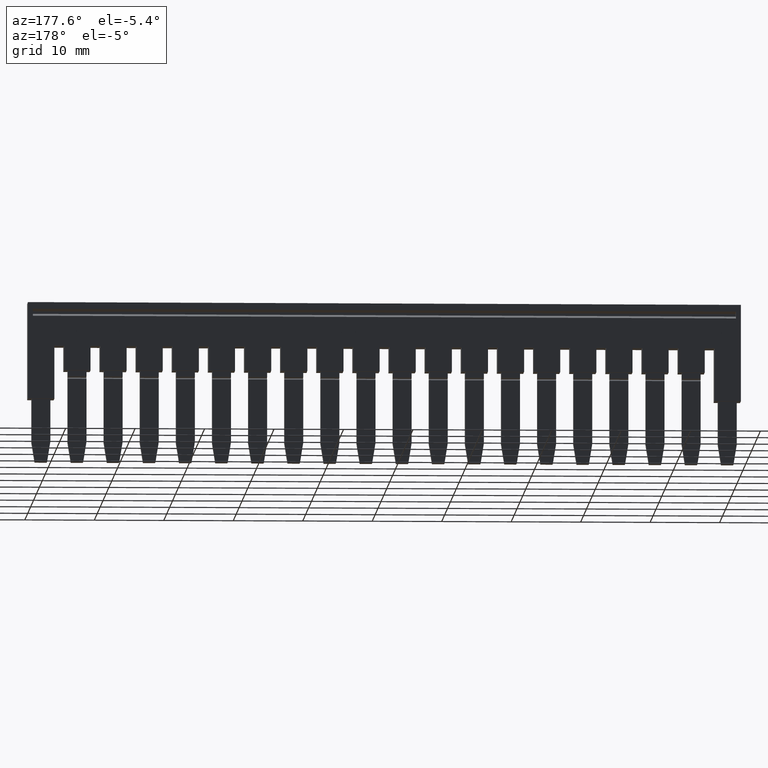
[diagram: clean part render]
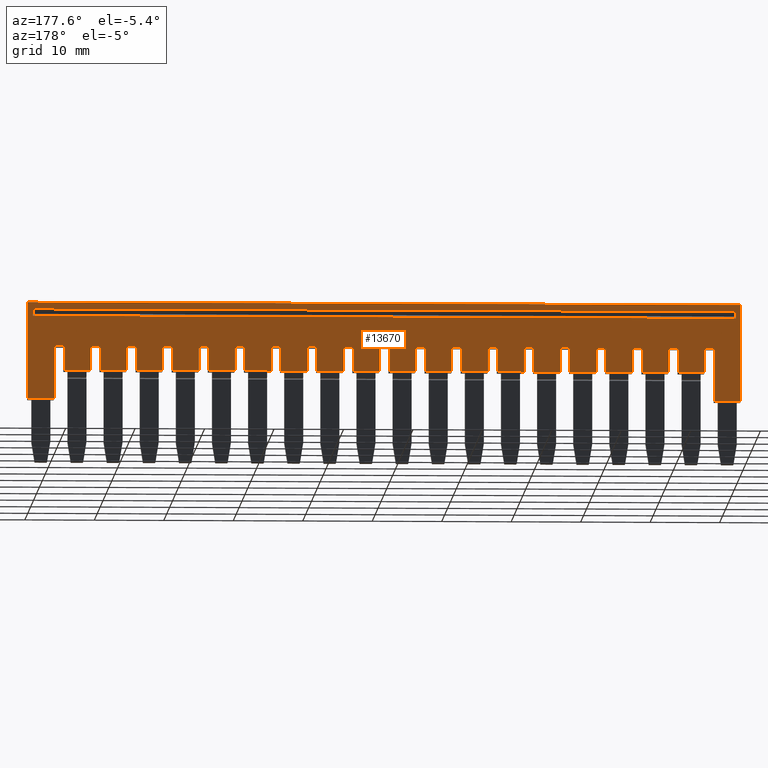
[diagram: same view with one face highlighted and labeled with its STEP entity id]
A machine part, auxiliary view. The second image highlights one B-rep face of the part: STEP entity #13670.
In plain terms, the highlighted planar face has unit normal (0, -1, 0).
Its self-contained STEP definition (entity closure, byte-faithful):
#6900=CARTESIAN_POINT('',(2.60716722168537,-10.116373989214,
54.825516382496));
#6910=DIRECTION('',(1.,0.,0.));
#6920=DIRECTION('',(0.,-1.,0.));
#6930=AXIS2_PLACEMENT_3D('',#6900,#6910,#6920);
#6940=PLANE('',#6930);
#6950=CARTESIAN_POINT('',(2.60716722168537,-9.84102540378367,41.874984))
;
#6960=DIRECTION('',(0.,0.,1.));
#6970=VECTOR('',#6960,1.);
#6980=LINE('',#6950,#6970);
#6990=CARTESIAN_POINT('',(2.60716722168537,-9.84102540378367,
18.8599999999988));
#7000=VERTEX_POINT('',#6990);
#7010=CARTESIAN_POINT('',(2.60716722168537,-9.84102540378367,
120.059999999999));
#7020=VERTEX_POINT('',#7010);
#7030=EDGE_CURVE('',#7000,#7020,#6980,.T.);
#7040=ORIENTED_EDGE('',*,*,#7030,.T.);
#7050=CARTESIAN_POINT('',(2.60716722168537,-12.305124,18.8599999999988))
;
#7060=DIRECTION('',(0.,1.,0.));
#7070=VECTOR('',#7060,1.);
#7080=LINE('',#7050,#7070);
#7090=CARTESIAN_POINT('',(2.60716722168537,-10.8389702342654,
18.8599999999988));
#7100=VERTEX_POINT('',#7090);
#7110=EDGE_CURVE('',#7100,#7000,#7080,.T.);
#7120=ORIENTED_EDGE('',*,*,#7110,.T.);
#7130=CARTESIAN_POINT('',(2.60716722168537,-10.8389702342654,41.874984))
;
#7140=DIRECTION('',(0.,0.,-1.));
#7150=VECTOR('',#7140,1.);
#7160=LINE('',#7130,#7150);
#7170=CARTESIAN_POINT('',(2.60716722168537,-10.8389702342654,
120.059999999999));
#7180=VERTEX_POINT('',#7170);
#7190=EDGE_CURVE('',#7180,#7100,#7160,.T.);
#7200=ORIENTED_EDGE('',*,*,#7190,.T.);
#7210=CARTESIAN_POINT('',(2.60716722168537,-12.305124,120.059999999999))
;
#7220=DIRECTION('',(0.,1.,0.));
#7230=VECTOR('',#7220,1.);
#7240=LINE('',#7210,#7230);
#7250=EDGE_CURVE('',#7180,#7020,#7240,.T.);
#7260=ORIENTED_EDGE('',*,*,#7250,.F.);
#7270=EDGE_LOOP('',(#7260,#7200,#7120,#7040));
#7280=FACE_BOUND('',#7270,.T.);
#7290=CARTESIAN_POINT('',(2.60716722168537,-12.305124,18.1599999999988))
;
#7300=DIRECTION('',(0.,1.,0.));
#7310=VECTOR('',#7300,1.);
#7320=LINE('',#7290,#7310);
#7330=CARTESIAN_POINT('',(2.60716722168537,-22.7750000000004,
18.1599999999988));
#7340=VERTEX_POINT('',#7330);
#7350=CARTESIAN_POINT('',(2.60716722168537,-8.8750000000004,
18.1599999999988));
#7360=VERTEX_POINT('',#7350);
#7370=EDGE_CURVE('',#7340,#7360,#7320,.T.);
#7380=ORIENTED_EDGE('',*,*,#7370,.F.);
#7390=CARTESIAN_POINT('',(2.60716722168537,-8.8750000000004,41.874984));
#7400=DIRECTION('',(0.,0.,-1.));
#7410=VECTOR('',#7400,1.);
#7420=LINE('',#7390,#7410);
#7430=CARTESIAN_POINT('',(2.60716722168537,-8.8750000000004,
120.759999999999));
#7440=VERTEX_POINT('',#7430);
#7450=EDGE_CURVE('',#7440,#7360,#7420,.T.);
#7460=ORIENTED_EDGE('',*,*,#7450,.T.);
#7470=CARTESIAN_POINT('',(2.60716722168537,-12.305124,120.759999999999))
;
#7480=DIRECTION('',(0.,1.,0.));
#7490=VECTOR('',#7480,1.);
#7500=LINE('',#7470,#7490);
#7510=CARTESIAN_POINT('',(2.60716722168537,-22.7750000000004,
120.759999999999));
#7520=VERTEX_POINT('',#7510);
#7530=EDGE_CURVE('',#7520,#7440,#7500,.T.);
#7540=ORIENTED_EDGE('',*,*,#7530,.T.);
#7550=CARTESIAN_POINT('',(2.60716722168537,-22.7750000000004,41.874984))
;
#7560=DIRECTION('',(0.,0.,-1.));
#7570=VECTOR('',#7560,1.);
#7580=LINE('',#7550,#7570);
#7590=CARTESIAN_POINT('',(2.60716722168537,-22.7750000000004,
116.959999999999));
#7600=VERTEX_POINT('',#7590);
#7610=EDGE_CURVE('',#7520,#7600,#7580,.T.);
#7620=ORIENTED_EDGE('',*,*,#7610,.F.);
#7630=CARTESIAN_POINT('',(2.60716722168537,-12.305124,116.959999999999))
;
#7640=DIRECTION('',(0.,-1.,0.));
#7650=VECTOR('',#7640,1.);
#7660=LINE('',#7630,#7650);
#7670=CARTESIAN_POINT('',(2.60716722168537,-15.1750000000004,
116.959999999999));
#7680=VERTEX_POINT('',#7670);
#7690=EDGE_CURVE('',#7680,#7600,#7660,.T.);
#7700=ORIENTED_EDGE('',*,*,#7690,.T.);
#7710=CARTESIAN_POINT('',(2.60716722168537,-15.1750000000004,41.874984))
;
#7720=DIRECTION('',(0.,0.,-1.));
#7730=VECTOR('',#7720,1.);
#7740=LINE('',#7710,#7730);
#7750=CARTESIAN_POINT('',(2.60716722168537,-15.1750000000004,
115.559999999999));
#7760=VERTEX_POINT('',#7750);
#7770=EDGE_CURVE('',#7680,#7760,#7740,.T.);
#7780=ORIENTED_EDGE('',*,*,#7770,.F.);
#7790=CARTESIAN_POINT('',(2.60716722168537,-12.305124,115.559999999999))
;
#7800=DIRECTION('',(0.,-1.,0.));
#7810=VECTOR('',#7800,1.);
#7820=LINE('',#7790,#7810);
#7830=CARTESIAN_POINT('',(2.60716722168537,-18.6750000000004,
115.559999999999));
#7840=VERTEX_POINT('',#7830);
#7850=EDGE_CURVE('',#7760,#7840,#7820,.T.);
#7860=ORIENTED_EDGE('',*,*,#7850,.F.);
#7870=CARTESIAN_POINT('',(2.60716722168537,-18.6750000000004,62.4));
#7880=DIRECTION('',(0.,0.,-1.));
#7890=VECTOR('',#7880,1.);
#7900=LINE('',#7870,#7890);
#7910=CARTESIAN_POINT('',(2.60716722168537,-18.6750000000004,
111.759999999999));
#7920=VERTEX_POINT('',#7910);
#7930=EDGE_CURVE('',#7840,#7920,#7900,.T.);
#7940=ORIENTED_EDGE('',*,*,#7930,.F.);
#7950=CARTESIAN_POINT('',(2.60716722168537,-12.305124,111.759999999999))
;
#7960=DIRECTION('',(0.,-1.,0.));
#7970=VECTOR('',#7960,1.);
#7980=LINE('',#7950,#7970);
#7990=CARTESIAN_POINT('',(2.60716722168537,-15.1750000000004,
111.759999999999));
#8000=VERTEX_POINT('',#7990);
#8010=EDGE_CURVE('',#8000,#7920,#7980,.T.);
#8020=ORIENTED_EDGE('',*,*,#8010,.T.);
#8030=CARTESIAN_POINT('',(2.60716722168537,-15.1750000000004,41.874984))
;
#8040=DIRECTION('',(0.,0.,-1.));
#8050=VECTOR('',#8040,1.);
#8060=LINE('',#8030,#8050);
#8070=CARTESIAN_POINT('',(2.60716722168537,-15.1750000000004,
110.359999999999));
#8080=VERTEX_POINT('',#8070);
#8090=EDGE_CURVE('',#8000,#8080,#8060,.T.);
#8100=ORIENTED_EDGE('',*,*,#8090,.F.);
#8110=CARTESIAN_POINT('',(2.60716722168537,-12.305124,110.359999999999))
;
#8120=DIRECTION('',(0.,-1.,0.));
#8130=VECTOR('',#8120,1.);
#8140=LINE('',#8110,#8130);
#8150=CARTESIAN_POINT('',(2.60716722168537,-18.6750000000004,
110.359999999999));
#8160=VERTEX_POINT('',#8150);
#8170=EDGE_CURVE('',#8080,#8160,#8140,.T.);
#8180=ORIENTED_EDGE('',*,*,#8170,.F.);
#8190=CARTESIAN_POINT('',(2.60716722168537,-18.6750000000004,57.2));
#8200=DIRECTION('',(0.,0.,-1.));
#8210=VECTOR('',#8200,1.);
#8220=LINE('',#8190,#8210);
#8230=CARTESIAN_POINT('',(2.60716722168537,-18.6750000000004,
106.559999999999));
#8240=VERTEX_POINT('',#8230);
#8250=EDGE_CURVE('',#8160,#8240,#8220,.T.);
#8260=ORIENTED_EDGE('',*,*,#8250,.F.);
#8270=CARTESIAN_POINT('',(2.60716722168537,-12.305124,106.559999999999))
;
#8280=DIRECTION('',(0.,-1.,0.));
#8290=VECTOR('',#8280,1.);
#8300=LINE('',#8270,#8290);
#8310=CARTESIAN_POINT('',(2.60716722168537,-15.1750000000004,
106.559999999999));
#8320=VERTEX_POINT('',#8310);
#8330=EDGE_CURVE('',#8320,#8240,#8300,.T.);
#8340=ORIENTED_EDGE('',*,*,#8330,.T.);
#8350=CARTESIAN_POINT('',(2.60716722168537,-15.1750000000004,41.874984))
;
#8360=DIRECTION('',(0.,0.,-1.));
#8370=VECTOR('',#8360,1.);
#8380=LINE('',#8350,#8370);
#8390=CARTESIAN_POINT('',(2.60716722168537,-15.1750000000004,
105.159999999999));
#8400=VERTEX_POINT('',#8390);
#8410=EDGE_CURVE('',#8320,#8400,#8380,.T.);
#8420=ORIENTED_EDGE('',*,*,#8410,.F.);
#8430=CARTESIAN_POINT('',(2.60716722168537,-12.305124,105.159999999999))
;
#8440=DIRECTION('',(0.,-1.,0.));
#8450=VECTOR('',#8440,1.);
#8460=LINE('',#8430,#8450);
#8470=CARTESIAN_POINT('',(2.60716722168537,-18.6750000000004,
105.159999999999));
#8480=VERTEX_POINT('',#8470);
#8490=EDGE_CURVE('',#8400,#8480,#8460,.T.);
#8500=ORIENTED_EDGE('',*,*,#8490,.F.);
#8510=CARTESIAN_POINT('',(2.60716722168537,-18.6750000000004,
52.0000000000001));
#8520=DIRECTION('',(0.,0.,-1.));
#8530=VECTOR('',#8520,1.);
#8540=LINE('',#8510,#8530);
#8550=CARTESIAN_POINT('',(2.60716722168537,-18.6750000000004,
101.359999999999));
#8560=VERTEX_POINT('',#8550);
#8570=EDGE_CURVE('',#8480,#8560,#8540,.T.);
#8580=ORIENTED_EDGE('',*,*,#8570,.F.);
#8590=CARTESIAN_POINT('',(2.60716722168537,-12.305124,101.359999999999))
;
#8600=DIRECTION('',(0.,-1.,0.));
#8610=VECTOR('',#8600,1.);
#8620=LINE('',#8590,#8610);
#8630=CARTESIAN_POINT('',(2.60716722168537,-15.1750000000004,
101.359999999999));
#8640=VERTEX_POINT('',#8630);
#8650=EDGE_CURVE('',#8640,#8560,#8620,.T.);
#8660=ORIENTED_EDGE('',*,*,#8650,.T.);
#8670=CARTESIAN_POINT('',(2.60716722168537,-15.1750000000004,41.874984))
;
#8680=DIRECTION('',(0.,0.,-1.));
#8690=VECTOR('',#8680,1.);
#8700=LINE('',#8670,#8690);
#8710=CARTESIAN_POINT('',(2.60716722168537,-15.1750000000004,
99.9599999999988));
#8720=VERTEX_POINT('',#8710);
#8730=EDGE_CURVE('',#8640,#8720,#8700,.T.);
#8740=ORIENTED_EDGE('',*,*,#8730,.F.);
#8750=CARTESIAN_POINT('',(2.60716722168537,-12.305124,99.9599999999988))
;
#8760=DIRECTION('',(0.,-1.,0.));
#8770=VECTOR('',#8760,1.);
#8780=LINE('',#8750,#8770);
#8790=CARTESIAN_POINT('',(2.60716722168537,-18.6750000000004,
99.9599999999988));
#8800=VERTEX_POINT('',#8790);
#8810=EDGE_CURVE('',#8720,#8800,#8780,.T.);
#8820=ORIENTED_EDGE('',*,*,#8810,.F.);
#8830=CARTESIAN_POINT('',(2.60716722168537,-18.6750000000004,
149.319999999998));
#8840=DIRECTION('',(0.,0.,1.));
#8850=VECTOR('',#8840,1.);
#8860=LINE('',#8830,#8850);
#8870=CARTESIAN_POINT('',(2.60716722168537,-18.6750000000004,
96.1599999999988));
#8880=VERTEX_POINT('',#8870);
#8890=EDGE_CURVE('',#8880,#8800,#8860,.T.);
#8900=ORIENTED_EDGE('',*,*,#8890,.T.);
#8910=CARTESIAN_POINT('',(2.60716722168537,-12.305124,96.1599999999988))
;
#8920=DIRECTION('',(0.,-1.,0.));
#8930=VECTOR('',#8920,1.);
#8940=LINE('',#8910,#8930);
#8950=CARTESIAN_POINT('',(2.60716722168537,-15.1750000000004,
96.1599999999988));
#8960=VERTEX_POINT('',#8950);
#8970=EDGE_CURVE('',#8960,#8880,#8940,.T.);
#8980=ORIENTED_EDGE('',*,*,#8970,.T.);
#8990=CARTESIAN_POINT('',(2.60716722168537,-15.1750000000004,41.874984))
;
#9000=DIRECTION('',(0.,0.,-1.));
#9010=VECTOR('',#9000,1.);
#9020=LINE('',#8990,#9010);
#9030=CARTESIAN_POINT('',(2.60716722168537,-15.1750000000004,
94.7599999999988));
#9040=VERTEX_POINT('',#9030);
#9050=EDGE_CURVE('',#8960,#9040,#9020,.T.);
#9060=ORIENTED_EDGE('',*,*,#9050,.F.);
#9070=CARTESIAN_POINT('',(2.60716722168537,-12.305124,94.7599999999988))
;
#9080=DIRECTION('',(0.,-1.,0.));
#9090=VECTOR('',#9080,1.);
#9100=LINE('',#9070,#9090);
#9110=CARTESIAN_POINT('',(2.60716722168537,-18.6750000000004,
94.7599999999988));
#9120=VERTEX_POINT('',#9110);
#9130=EDGE_CURVE('',#9040,#9120,#9100,.T.);
#9140=ORIENTED_EDGE('',*,*,#9130,.F.);
#9150=CARTESIAN_POINT('',(2.60716722168537,-18.6750000000004,
144.119999999998));
#9160=DIRECTION('',(0.,0.,1.));
#9170=VECTOR('',#9160,1.);
#9180=LINE('',#9150,#9170);
#9190=CARTESIAN_POINT('',(2.60716722168537,-18.6750000000004,
90.9599999999988));
#9200=VERTEX_POINT('',#9190);
#9210=EDGE_CURVE('',#9200,#9120,#9180,.T.);
#9220=ORIENTED_EDGE('',*,*,#9210,.T.);
#9230=CARTESIAN_POINT('',(2.60716722168537,-12.305124,90.9599999999988))
;
#9240=DIRECTION('',(0.,-1.,0.));
#9250=VECTOR('',#9240,1.);
#9260=LINE('',#9230,#9250);
#9270=CARTESIAN_POINT('',(2.60716722168537,-15.1750000000004,
90.9599999999988));
#9280=VERTEX_POINT('',#9270);
#9290=EDGE_CURVE('',#9280,#9200,#9260,.T.);
#9300=ORIENTED_EDGE('',*,*,#9290,.T.);
#9310=CARTESIAN_POINT('',(2.60716722168537,-15.1750000000004,41.874984))
;
#9320=DIRECTION('',(0.,0.,-1.));
#9330=VECTOR('',#9320,1.);
#9340=LINE('',#9310,#9330);
#9350=CARTESIAN_POINT('',(2.60716722168537,-15.1750000000004,
89.5599999999988));
#9360=VERTEX_POINT('',#9350);
#9370=EDGE_CURVE('',#9280,#9360,#9340,.T.);
#9380=ORIENTED_EDGE('',*,*,#9370,.F.);
#9390=CARTESIAN_POINT('',(2.60716722168537,-12.305124,89.5599999999988))
;
#9400=DIRECTION('',(0.,-1.,0.));
#9410=VECTOR('',#9400,1.);
#9420=LINE('',#9390,#9410);
#9430=CARTESIAN_POINT('',(2.60716722168537,-18.6750000000004,
89.5599999999988));
#9440=VERTEX_POINT('',#9430);
#9450=EDGE_CURVE('',#9360,#9440,#9420,.T.);
#9460=ORIENTED_EDGE('',*,*,#9450,.F.);
#9470=CARTESIAN_POINT('',(2.60716722168536,-18.6750000000004,
138.919999999998));
#9480=DIRECTION('',(0.,0.,1.));
#9490=VECTOR('',#9480,1.);
#9500=LINE('',#9470,#9490);
#9510=CARTESIAN_POINT('',(2.60716722168537,-18.6750000000004,
85.7599999999988));
#9520=VERTEX_POINT('',#9510);
#9530=EDGE_CURVE('',#9520,#9440,#9500,.T.);
#9540=ORIENTED_EDGE('',*,*,#9530,.T.);
#9550=CARTESIAN_POINT('',(2.60716722168537,-12.305124,85.7599999999988))
;
#9560=DIRECTION('',(0.,-1.,0.));
#9570=VECTOR('',#9560,1.);
#9580=LINE('',#9550,#9570);
#9590=CARTESIAN_POINT('',(2.60716722168537,-15.1750000000004,
85.7599999999988));
#9600=VERTEX_POINT('',#9590);
#9610=EDGE_CURVE('',#9600,#9520,#9580,.T.);
#9620=ORIENTED_EDGE('',*,*,#9610,.T.);
#9630=CARTESIAN_POINT('',(2.60716722168537,-15.1750000000004,41.874984))
;
#9640=DIRECTION('',(0.,0.,-1.));
#9650=VECTOR('',#9640,1.);
#9660=LINE('',#9630,#9650);
#9670=CARTESIAN_POINT('',(2.60716722168537,-15.1750000000004,
84.3599999999988));
#9680=VERTEX_POINT('',#9670);
#9690=EDGE_CURVE('',#9600,#9680,#9660,.T.);
#9700=ORIENTED_EDGE('',*,*,#9690,.F.);
#9710=CARTESIAN_POINT('',(2.60716722168537,-12.305124,84.3599999999988))
;
#9720=DIRECTION('',(0.,-1.,0.));
#9730=VECTOR('',#9720,1.);
#9740=LINE('',#9710,#9730);
#9750=CARTESIAN_POINT('',(2.60716722168537,-18.6750000000004,
84.3599999999988));
#9760=VERTEX_POINT('',#9750);
#9770=EDGE_CURVE('',#9680,#9760,#9740,.T.);
#9780=ORIENTED_EDGE('',*,*,#9770,.F.);
#9790=CARTESIAN_POINT('',(2.60716722168536,-18.6750000000004,
133.719999999998));
#9800=DIRECTION('',(0.,0.,1.));
#9810=VECTOR('',#9800,1.);
#9820=LINE('',#9790,#9810);
#9830=CARTESIAN_POINT('',(2.60716722168537,-18.6750000000004,
80.5599999999988));
#9840=VERTEX_POINT('',#9830);
#9850=EDGE_CURVE('',#9840,#9760,#9820,.T.);
#9860=ORIENTED_EDGE('',*,*,#9850,.T.);
#9870=CARTESIAN_POINT('',(2.60716722168537,-12.305124,80.5599999999988))
;
#9880=DIRECTION('',(0.,-1.,0.));
#9890=VECTOR('',#9880,1.);
#9900=LINE('',#9870,#9890);
#9910=CARTESIAN_POINT('',(2.60716722168537,-15.1750000000004,
80.5599999999988));
#9920=VERTEX_POINT('',#9910);
#9930=EDGE_CURVE('',#9920,#9840,#9900,.T.);
#9940=ORIENTED_EDGE('',*,*,#9930,.T.);
#9950=CARTESIAN_POINT('',(2.60716722168537,-15.1750000000004,41.874984))
;
#9960=DIRECTION('',(0.,0.,-1.));
#9970=VECTOR('',#9960,1.);
#9980=LINE('',#9950,#9970);
#9990=CARTESIAN_POINT('',(2.60716722168537,-15.1750000000004,
79.1599999999988));
#10000=VERTEX_POINT('',#9990);
#10010=EDGE_CURVE('',#9920,#10000,#9980,.T.);
#10020=ORIENTED_EDGE('',*,*,#10010,.F.);
#10030=CARTESIAN_POINT('',(2.60716722168537,-12.305124,79.1599999999988)
);
#10040=DIRECTION('',(0.,-1.,0.));
#10050=VECTOR('',#10040,1.);
#10060=LINE('',#10030,#10050);
#10070=CARTESIAN_POINT('',(2.60716722168537,-18.6750000000004,
79.1599999999988));
#10080=VERTEX_POINT('',#10070);
#10090=EDGE_CURVE('',#10000,#10080,#10060,.T.);
#10100=ORIENTED_EDGE('',*,*,#10090,.F.);
#10110=CARTESIAN_POINT('',(2.60716722168537,-18.6750000000004,26.));
#10120=DIRECTION('',(0.,0.,-1.));
#10130=VECTOR('',#10120,1.);
#10140=LINE('',#10110,#10130);
#10150=CARTESIAN_POINT('',(2.60716722168537,-18.6750000000004,
75.3599999999988));
#10160=VERTEX_POINT('',#10150);
#10170=EDGE_CURVE('',#10080,#10160,#10140,.T.);
#10180=ORIENTED_EDGE('',*,*,#10170,.F.);
#10190=CARTESIAN_POINT('',(2.60716722168537,-12.305124,75.3599999999988)
);
#10200=DIRECTION('',(0.,-1.,0.));
#10210=VECTOR('',#10200,1.);
#10220=LINE('',#10190,#10210);
#10230=CARTESIAN_POINT('',(2.60716722168537,-15.1750000000004,
75.3599999999988));
#10240=VERTEX_POINT('',#10230);
#10250=EDGE_CURVE('',#10240,#10160,#10220,.T.);
#10260=ORIENTED_EDGE('',*,*,#10250,.T.);
#10270=CARTESIAN_POINT('',(2.60716722168537,-15.1750000000004,41.874984)
);
#10280=DIRECTION('',(0.,0.,-1.));
#10290=VECTOR('',#10280,1.);
#10300=LINE('',#10270,#10290);
#10310=CARTESIAN_POINT('',(2.60716722168537,-15.1750000000004,
73.9599999999988));
#10320=VERTEX_POINT('',#10310);
#10330=EDGE_CURVE('',#10240,#10320,#10300,.T.);
#10340=ORIENTED_EDGE('',*,*,#10330,.F.);
#10350=CARTESIAN_POINT('',(2.60716722168537,-12.305124,73.9599999999988)
);
#10360=DIRECTION('',(0.,-1.,0.));
#10370=VECTOR('',#10360,1.);
#10380=LINE('',#10350,#10370);
#10390=CARTESIAN_POINT('',(2.60716722168537,-18.6750000000004,
73.9599999999988));
#10400=VERTEX_POINT('',#10390);
#10410=EDGE_CURVE('',#10320,#10400,#10380,.T.);
#10420=ORIENTED_EDGE('',*,*,#10410,.F.);
#10430=CARTESIAN_POINT('',(2.60716722168537,-18.6750000000004,20.8));
#10440=DIRECTION('',(0.,0.,-1.));
#10450=VECTOR('',#10440,1.);
#10460=LINE('',#10430,#10450);
#10470=CARTESIAN_POINT('',(2.60716722168537,-18.6750000000004,
70.1599999999988));
#10480=VERTEX_POINT('',#10470);
#10490=EDGE_CURVE('',#10400,#10480,#10460,.T.);
#10500=ORIENTED_EDGE('',*,*,#10490,.F.);
#10510=CARTESIAN_POINT('',(2.60716722168537,-12.305124,70.1599999999988)
);
#10520=DIRECTION('',(0.,-1.,0.));
#10530=VECTOR('',#10520,1.);
#10540=LINE('',#10510,#10530);
#10550=CARTESIAN_POINT('',(2.60716722168537,-15.1750000000004,
70.1599999999988));
#10560=VERTEX_POINT('',#10550);
#10570=EDGE_CURVE('',#10560,#10480,#10540,.T.);
#10580=ORIENTED_EDGE('',*,*,#10570,.T.);
#10590=CARTESIAN_POINT('',(2.60716722168537,-15.1750000000004,41.874984)
);
#10600=DIRECTION('',(0.,0.,-1.));
#10610=VECTOR('',#10600,1.);
#10620=LINE('',#10590,#10610);
#10630=CARTESIAN_POINT('',(2.60716722168537,-15.1750000000004,
68.7599999999988));
#10640=VERTEX_POINT('',#10630);
#10650=EDGE_CURVE('',#10560,#10640,#10620,.T.);
#10660=ORIENTED_EDGE('',*,*,#10650,.F.);
#10670=CARTESIAN_POINT('',(2.60716722168537,-12.305124,68.7599999999988)
);
#10680=DIRECTION('',(0.,-1.,0.));
#10690=VECTOR('',#10680,1.);
#10700=LINE('',#10670,#10690);
#10710=CARTESIAN_POINT('',(2.60716722168537,-18.6750000000004,
68.7599999999988));
#10720=VERTEX_POINT('',#10710);
#10730=EDGE_CURVE('',#10640,#10720,#10700,.T.);
#10740=ORIENTED_EDGE('',*,*,#10730,.F.);
#10750=CARTESIAN_POINT('',(2.60716722168537,-18.6750000000004,
118.119999999998));
#10760=DIRECTION('',(0.,0.,1.));
#10770=VECTOR('',#10760,1.);
#10780=LINE('',#10750,#10770);
#10790=CARTESIAN_POINT('',(2.60716722168537,-18.6750000000004,
64.9599999999988));
#10800=VERTEX_POINT('',#10790);
#10810=EDGE_CURVE('',#10800,#10720,#10780,.T.);
#10820=ORIENTED_EDGE('',*,*,#10810,.T.);
#10830=CARTESIAN_POINT('',(2.60716722168537,-12.305124,64.9599999999988)
);
#10840=DIRECTION('',(0.,-1.,0.));
#10850=VECTOR('',#10840,1.);
#10860=LINE('',#10830,#10850);
#10870=CARTESIAN_POINT('',(2.60716722168537,-15.1750000000004,
64.9599999999988));
#10880=VERTEX_POINT('',#10870);
#10890=EDGE_CURVE('',#10880,#10800,#10860,.T.);
#10900=ORIENTED_EDGE('',*,*,#10890,.T.);
#10910=CARTESIAN_POINT('',(2.60716722168537,-15.1750000000004,41.874984)
);
#10920=DIRECTION('',(0.,0.,-1.));
#10930=VECTOR('',#10920,1.);
#10940=LINE('',#10910,#10930);
#10950=CARTESIAN_POINT('',(2.60716722168537,-15.1750000000004,
63.5599999999988));
#10960=VERTEX_POINT('',#10950);
#10970=EDGE_CURVE('',#10880,#10960,#10940,.T.);
#10980=ORIENTED_EDGE('',*,*,#10970,.F.);
#10990=CARTESIAN_POINT('',(2.60716722168537,-12.305124,63.5599999999988)
);
#11000=DIRECTION('',(0.,-1.,0.));
#11010=VECTOR('',#11000,1.);
#11020=LINE('',#10990,#11010);
#11030=CARTESIAN_POINT('',(2.60716722168537,-18.6750000000004,
63.5599999999988));
#11040=VERTEX_POINT('',#11030);
#11050=EDGE_CURVE('',#10960,#11040,#11020,.T.);
#11060=ORIENTED_EDGE('',*,*,#11050,.F.);
#11070=CARTESIAN_POINT('',(2.60716722168537,-18.6750000000004,10.4));
#11080=DIRECTION('',(0.,0.,-1.));
#11090=VECTOR('',#11080,1.);
#11100=LINE('',#11070,#11090);
#11110=CARTESIAN_POINT('',(2.60716722168537,-18.6750000000004,
59.7599999999988));
#11120=VERTEX_POINT('',#11110);
#11130=EDGE_CURVE('',#11040,#11120,#11100,.T.);
#11140=ORIENTED_EDGE('',*,*,#11130,.F.);
#11150=CARTESIAN_POINT('',(2.60716722168537,-12.305124,59.7599999999988)
);
#11160=DIRECTION('',(0.,-1.,0.));
#11170=VECTOR('',#11160,1.);
#11180=LINE('',#11150,#11170);
#11190=CARTESIAN_POINT('',(2.60716722168537,-15.1750000000004,
59.7599999999988));
#11200=VERTEX_POINT('',#11190);
#11210=EDGE_CURVE('',#11200,#11120,#11180,.T.);
#11220=ORIENTED_EDGE('',*,*,#11210,.T.);
#11230=CARTESIAN_POINT('',(2.60716722168537,-15.1750000000004,41.874984)
);
#11240=DIRECTION('',(0.,0.,-1.));
#11250=VECTOR('',#11240,1.);
#11260=LINE('',#11230,#11250);
#11270=CARTESIAN_POINT('',(2.60716722168537,-15.1750000000004,
58.3599999999988));
#11280=VERTEX_POINT('',#11270);
#11290=EDGE_CURVE('',#11200,#11280,#11260,.T.);
#11300=ORIENTED_EDGE('',*,*,#11290,.F.);
#11310=CARTESIAN_POINT('',(2.60716722168537,-12.305124,58.3599999999988)
);
#11320=DIRECTION('',(0.,-1.,0.));
#11330=VECTOR('',#11320,1.);
#11340=LINE('',#11310,#11330);
#11350=CARTESIAN_POINT('',(2.60716722168537,-18.6750000000004,
58.3599999999988));
#11360=VERTEX_POINT('',#11350);
#11370=EDGE_CURVE('',#11280,#11360,#11340,.T.);
#11380=ORIENTED_EDGE('',*,*,#11370,.F.);
#11390=CARTESIAN_POINT('',(2.60716722168537,-18.6750000000004,
107.719999999998));
#11400=DIRECTION('',(0.,0.,1.));
#11410=VECTOR('',#11400,1.);
#11420=LINE('',#11390,#11410);
#11430=CARTESIAN_POINT('',(2.60716722168537,-18.6750000000004,
54.5599999999988));
#11440=VERTEX_POINT('',#11430);
#11450=EDGE_CURVE('',#11440,#11360,#11420,.T.);
#11460=ORIENTED_EDGE('',*,*,#11450,.T.);
#11470=CARTESIAN_POINT('',(2.60716722168537,-12.305124,54.5599999999988)
);
#11480=DIRECTION('',(0.,-1.,0.));
#11490=VECTOR('',#11480,1.);
#11500=LINE('',#11470,#11490);
#11510=CARTESIAN_POINT('',(2.60716722168537,-15.1750000000004,
54.5599999999988));
#11520=VERTEX_POINT('',#11510);
#11530=EDGE_CURVE('',#11520,#11440,#11500,.T.);
#11540=ORIENTED_EDGE('',*,*,#11530,.T.);
#11550=CARTESIAN_POINT('',(2.60716722168537,-15.1750000000004,41.874984)
);
#11560=DIRECTION('',(0.,0.,-1.));
#11570=VECTOR('',#11560,1.);
#11580=LINE('',#11550,#11570);
#11590=CARTESIAN_POINT('',(2.60716722168537,-15.1750000000004,
53.1599999999988));
#11600=VERTEX_POINT('',#11590);
#11610=EDGE_CURVE('',#11520,#11600,#11580,.T.);
#11620=ORIENTED_EDGE('',*,*,#11610,.F.);
#11630=CARTESIAN_POINT('',(2.60716722168537,-12.305124,53.1599999999988)
);
#11640=DIRECTION('',(0.,-1.,0.));
#11650=VECTOR('',#11640,1.);
#11660=LINE('',#11630,#11650);
#11670=CARTESIAN_POINT('',(2.60716722168537,-18.6750000000004,
53.1599999999988));
#11680=VERTEX_POINT('',#11670);
#11690=EDGE_CURVE('',#11600,#11680,#11660,.T.);
#11700=ORIENTED_EDGE('',*,*,#11690,.F.);
#11710=CARTESIAN_POINT('',(2.60716722168537,-18.6750000000004,
102.519999999998));
#11720=DIRECTION('',(0.,0.,1.));
#11730=VECTOR('',#11720,1.);
#11740=LINE('',#11710,#11730);
#11750=CARTESIAN_POINT('',(2.60716722168537,-18.6750000000004,
49.3599999999988));
#11760=VERTEX_POINT('',#11750);
#11770=EDGE_CURVE('',#11760,#11680,#11740,.T.);
#11780=ORIENTED_EDGE('',*,*,#11770,.T.);
#11790=CARTESIAN_POINT('',(2.60716722168537,-12.305124,49.3599999999988)
);
#11800=DIRECTION('',(0.,-1.,0.));
#11810=VECTOR('',#11800,1.);
#11820=LINE('',#11790,#11810);
#11830=CARTESIAN_POINT('',(2.60716722168537,-15.1750000000004,
49.3599999999988));
#11840=VERTEX_POINT('',#11830);
#11850=EDGE_CURVE('',#11840,#11760,#11820,.T.);
#11860=ORIENTED_EDGE('',*,*,#11850,.T.);
#11870=CARTESIAN_POINT('',(2.60716722168537,-15.1750000000004,41.874984)
);
#11880=DIRECTION('',(0.,0.,-1.));
#11890=VECTOR('',#11880,1.);
#11900=LINE('',#11870,#11890);
#11910=CARTESIAN_POINT('',(2.60716722168537,-15.1750000000004,
47.9599999999988));
#11920=VERTEX_POINT('',#11910);
#11930=EDGE_CURVE('',#11840,#11920,#11900,.T.);
#11940=ORIENTED_EDGE('',*,*,#11930,.F.);
#11950=CARTESIAN_POINT('',(2.60716722168537,-12.305124,47.9599999999988)
);
#11960=DIRECTION('',(0.,-1.,0.));
#11970=VECTOR('',#11960,1.);
#11980=LINE('',#11950,#11970);
#11990=CARTESIAN_POINT('',(2.60716722168537,-18.6750000000004,
47.9599999999988));
#12000=VERTEX_POINT('',#11990);
#12010=EDGE_CURVE('',#11920,#12000,#11980,.T.);
#12020=ORIENTED_EDGE('',*,*,#12010,.F.);
#12030=CARTESIAN_POINT('',(2.60716722168536,-18.6750000000004,
97.3199999999975));
#12040=DIRECTION('',(0.,0.,1.));
#12050=VECTOR('',#12040,1.);
#12060=LINE('',#12030,#12050);
#12070=CARTESIAN_POINT('',(2.60716722168537,-18.6750000000004,
44.1599999999988));
#12080=VERTEX_POINT('',#12070);
#12090=EDGE_CURVE('',#12080,#12000,#12060,.T.);
#12100=ORIENTED_EDGE('',*,*,#12090,.T.);
#12110=CARTESIAN_POINT('',(2.60716722168537,-12.305124,44.1599999999988)
);
#12120=DIRECTION('',(0.,-1.,0.));
#12130=VECTOR('',#12120,1.);
#12140=LINE('',#12110,#12130);
#12150=CARTESIAN_POINT('',(2.60716722168537,-15.1750000000004,
44.1599999999988));
#12160=VERTEX_POINT('',#12150);
#12170=EDGE_CURVE('',#12160,#12080,#12140,.T.);
#12180=ORIENTED_EDGE('',*,*,#12170,.T.);
#12190=CARTESIAN_POINT('',(2.60716722168537,-15.1750000000004,41.874984)
);
#12200=DIRECTION('',(0.,0.,-1.));
#12210=VECTOR('',#12200,1.);
#12220=LINE('',#12190,#12210);
#12230=CARTESIAN_POINT('',(2.60716722168537,-15.1750000000004,
42.7599999999988));
#12240=VERTEX_POINT('',#12230);
#12250=EDGE_CURVE('',#12160,#12240,#12220,.T.);
#12260=ORIENTED_EDGE('',*,*,#12250,.F.);
#12270=CARTESIAN_POINT('',(2.60716722168537,-12.305124,42.7599999999988)
);
#12280=DIRECTION('',(0.,-1.,0.));
#12290=VECTOR('',#12280,1.);
#12300=LINE('',#12270,#12290);
#12310=CARTESIAN_POINT('',(2.60716722168537,-18.6750000000004,
42.7599999999988));
#12320=VERTEX_POINT('',#12310);
#12330=EDGE_CURVE('',#12240,#12320,#12300,.T.);
#12340=ORIENTED_EDGE('',*,*,#12330,.F.);
#12350=CARTESIAN_POINT('',(2.60716722168536,-18.6750000000004,
92.1199999999975));
#12360=DIRECTION('',(0.,0.,1.));
#12370=VECTOR('',#12360,1.);
#12380=LINE('',#12350,#12370);
#12390=CARTESIAN_POINT('',(2.60716722168537,-18.6750000000004,
38.9599999999988));
#12400=VERTEX_POINT('',#12390);
#12410=EDGE_CURVE('',#12400,#12320,#12380,.T.);
#12420=ORIENTED_EDGE('',*,*,#12410,.T.);
#12430=CARTESIAN_POINT('',(2.60716722168537,-12.305124,38.9599999999988)
);
#12440=DIRECTION('',(0.,-1.,0.));
#12450=VECTOR('',#12440,1.);
#12460=LINE('',#12430,#12450);
#12470=CARTESIAN_POINT('',(2.60716722168537,-15.1750000000004,
38.9599999999988));
#12480=VERTEX_POINT('',#12470);
#12490=EDGE_CURVE('',#12480,#12400,#12460,.T.);
#12500=ORIENTED_EDGE('',*,*,#12490,.T.);
#12510=CARTESIAN_POINT('',(2.60716722168537,-15.1750000000004,41.874984)
);
#12520=DIRECTION('',(0.,0.,-1.));
#12530=VECTOR('',#12520,1.);
#12540=LINE('',#12510,#12530);
#12550=CARTESIAN_POINT('',(2.60716722168537,-15.1750000000004,
37.5599999999988));
#12560=VERTEX_POINT('',#12550);
#12570=EDGE_CURVE('',#12480,#12560,#12540,.T.);
#12580=ORIENTED_EDGE('',*,*,#12570,.F.);
#12590=CARTESIAN_POINT('',(2.60716722168537,-12.305124,37.5599999999988)
);
#12600=DIRECTION('',(0.,-1.,0.));
#12610=VECTOR('',#12600,1.);
#12620=LINE('',#12590,#12610);
#12630=CARTESIAN_POINT('',(2.60716722168537,-18.6750000000004,
37.5599999999988));
#12640=VERTEX_POINT('',#12630);
#12650=EDGE_CURVE('',#12560,#12640,#12620,.T.);
#12660=ORIENTED_EDGE('',*,*,#12650,.F.);
#12670=CARTESIAN_POINT('',(2.60716722168537,-18.6750000000004,-15.6));
#12680=DIRECTION('',(0.,0.,-1.));
#12690=VECTOR('',#12680,1.);
#12700=LINE('',#12670,#12690);
#12710=CARTESIAN_POINT('',(2.60716722168537,-18.6750000000004,
33.7599999999988));
#12720=VERTEX_POINT('',#12710);
#12730=EDGE_CURVE('',#12640,#12720,#12700,.T.);
#12740=ORIENTED_EDGE('',*,*,#12730,.F.);
#12750=CARTESIAN_POINT('',(2.60716722168537,-12.305124,33.7599999999988)
);
#12760=DIRECTION('',(0.,-1.,0.));
#12770=VECTOR('',#12760,1.);
#12780=LINE('',#12750,#12770);
#12790=CARTESIAN_POINT('',(2.60716722168537,-15.1750000000004,
33.7599999999988));
#12800=VERTEX_POINT('',#12790);
#12810=EDGE_CURVE('',#12800,#12720,#12780,.T.);
#12820=ORIENTED_EDGE('',*,*,#12810,.T.);
#12830=CARTESIAN_POINT('',(2.60716722168537,-15.1750000000004,41.874984)
);
#12840=DIRECTION('',(0.,0.,-1.));
#12850=VECTOR('',#12840,1.);
#12860=LINE('',#12830,#12850);
#12870=CARTESIAN_POINT('',(2.60716722168537,-15.1750000000004,
32.3599999999988));
#12880=VERTEX_POINT('',#12870);
#12890=EDGE_CURVE('',#12800,#12880,#12860,.T.);
#12900=ORIENTED_EDGE('',*,*,#12890,.F.);
#12910=CARTESIAN_POINT('',(2.60716722168537,-12.305124,32.3599999999988)
);
#12920=DIRECTION('',(0.,-1.,0.));
#12930=VECTOR('',#12920,1.);
#12940=LINE('',#12910,#12930);
#12950=CARTESIAN_POINT('',(2.60716722168537,-18.6750000000004,
32.3599999999988));
#12960=VERTEX_POINT('',#12950);
#12970=EDGE_CURVE('',#12880,#12960,#12940,.T.);
#12980=ORIENTED_EDGE('',*,*,#12970,.F.);
#12990=CARTESIAN_POINT('',(2.60716722168537,-18.6750000000004,-20.8));
#13000=DIRECTION('',(0.,0.,-1.));
#13010=VECTOR('',#13000,1.);
#13020=LINE('',#12990,#13010);
#13030=CARTESIAN_POINT('',(2.60716722168537,-18.6750000000004,
28.5599999999988));
#13040=VERTEX_POINT('',#13030);
#13050=EDGE_CURVE('',#12960,#13040,#13020,.T.);
#13060=ORIENTED_EDGE('',*,*,#13050,.F.);
#13070=CARTESIAN_POINT('',(2.60716722168537,-12.305124,28.5599999999988)
);
#13080=DIRECTION('',(0.,-1.,0.));
#13090=VECTOR('',#13080,1.);
#13100=LINE('',#13070,#13090);
#13110=CARTESIAN_POINT('',(2.60716722168537,-15.1750000000004,
28.5599999999988));
#13120=VERTEX_POINT('',#13110);
#13130=EDGE_CURVE('',#13120,#13040,#13100,.T.);
#13140=ORIENTED_EDGE('',*,*,#13130,.T.);
#13150=CARTESIAN_POINT('',(2.60716722168537,-15.1750000000004,41.874984)
);
#13160=DIRECTION('',(0.,0.,-1.));
#13170=VECTOR('',#13160,1.);
#13180=LINE('',#13150,#13170);
#13190=CARTESIAN_POINT('',(2.60716722168537,-15.1750000000004,
27.1599999999988));
#13200=VERTEX_POINT('',#13190);
#13210=EDGE_CURVE('',#13120,#13200,#13180,.T.);
#13220=ORIENTED_EDGE('',*,*,#13210,.F.);
#13230=CARTESIAN_POINT('',(2.60716722168537,-12.305124,27.1599999999988)
);
#13240=DIRECTION('',(0.,-1.,0.));
#13250=VECTOR('',#13240,1.);
#13260=LINE('',#13230,#13250);
#13270=CARTESIAN_POINT('',(2.60716722168537,-18.6750000000004,
27.1599999999988));
#13280=VERTEX_POINT('',#13270);
#13290=EDGE_CURVE('',#13200,#13280,#13260,.T.);
#13300=ORIENTED_EDGE('',*,*,#13290,.F.);
#13310=CARTESIAN_POINT('',(2.60716722168537,-18.6750000000004,
76.5199999999976));
#13320=DIRECTION('',(0.,0.,1.));
#13330=VECTOR('',#13320,1.);
#13340=LINE('',#13310,#13330);
#13350=CARTESIAN_POINT('',(2.60716722168537,-18.6750000000004,
23.3599999999988));
#13360=VERTEX_POINT('',#13350);
#13370=EDGE_CURVE('',#13360,#13280,#13340,.T.);
#13380=ORIENTED_EDGE('',*,*,#13370,.T.);
#13390=CARTESIAN_POINT('',(2.60716722168537,-12.305124,23.3599999999988)
);
#13400=DIRECTION('',(0.,-1.,0.));
#13410=VECTOR('',#13400,1.);
#13420=LINE('',#13390,#13410);
#13430=CARTESIAN_POINT('',(2.60716722168537,-15.1750000000004,
23.3599999999988));
#13440=VERTEX_POINT('',#13430);
#13450=EDGE_CURVE('',#13440,#13360,#13420,.T.);
#13460=ORIENTED_EDGE('',*,*,#13450,.T.);
#13470=CARTESIAN_POINT('',(2.60716722168537,-15.1750000000004,41.874984)
);
#13480=DIRECTION('',(0.,0.,-1.));
#13490=VECTOR('',#13480,1.);
#13500=LINE('',#13470,#13490);
#13510=CARTESIAN_POINT('',(2.60716722168537,-15.1750000000004,
21.9599999999988));
#13520=VERTEX_POINT('',#13510);
#13530=EDGE_CURVE('',#13440,#13520,#13500,.T.);
#13540=ORIENTED_EDGE('',*,*,#13530,.F.);
#13550=CARTESIAN_POINT('',(2.60716722168537,-12.305124,21.9599999999988)
);
#13560=DIRECTION('',(0.,-1.,0.));
#13570=VECTOR('',#13560,1.);
#13580=LINE('',#13550,#13570);
#13590=CARTESIAN_POINT('',(2.60716722168537,-22.7750000000004,
21.9599999999988));
#13600=VERTEX_POINT('',#13590);
#13610=EDGE_CURVE('',#13520,#13600,#13580,.T.);
#13620=ORIENTED_EDGE('',*,*,#13610,.F.);
#13630=EDGE_CURVE('',#13600,#7340,#7580,.T.);
#13640=ORIENTED_EDGE('',*,*,#13630,.F.);
#13650=EDGE_LOOP('',(#13640,#13620,#13540,#13460,#13380,#13300,#13220,
#13140,#13060,#12980,#12900,#12820,#12740,#12660,#12580,#12500,#12420,
#12340,#12260,#12180,#12100,#12020,#11940,#11860,#11780,#11700,#11620,
#11540,#11460,#11380,#11300,#11220,#11140,#11060,#10980,#10900,#10820,
#10740,#10660,#10580,#10500,#10420,#10340,#10260,#10180,#10100,#10020,
#9940,#9860,#9780,#9700,#9620,#9540,#9460,#9380,#9300,#9220,#9140,#9060,
#8980,#8900,#8820,#8740,#8660,#8580,#8500,#8420,#8340,#8260,#8180,#8100,
#8020,#7940,#7860,#7780,#7700,#7620,#7540,#7460,#7380));
#13660=FACE_OUTER_BOUND('',#13650,.T.);
#13670=ADVANCED_FACE('',(#7280,#13660),#6940,.F.);